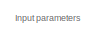
[diagram: root canvas - part 1/8, top left region]
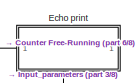
[diagram: root canvas - part 2/8, top center region]
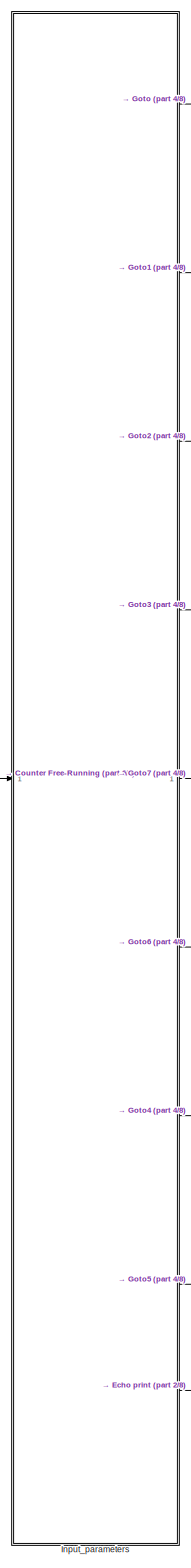
[diagram: root canvas - part 3/8, top left region]
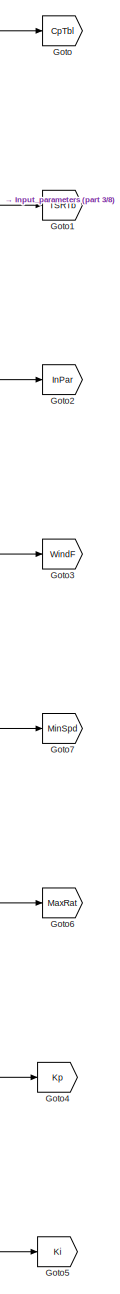
[diagram: root canvas - part 4/8, top center region]
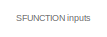
[diagram: root canvas - part 5/8, bottom left region]
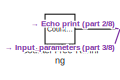
[diagram: root canvas - part 6/8, bottom left region]
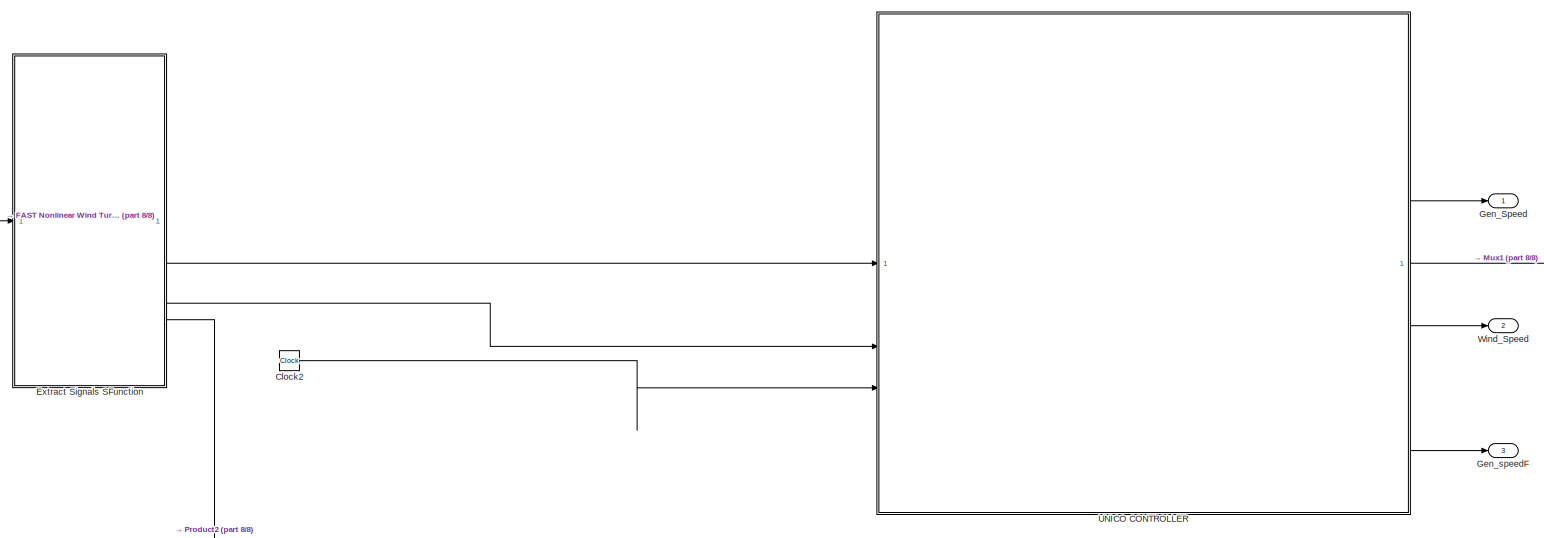
[diagram: root canvas - part 7/8, bottom left region]
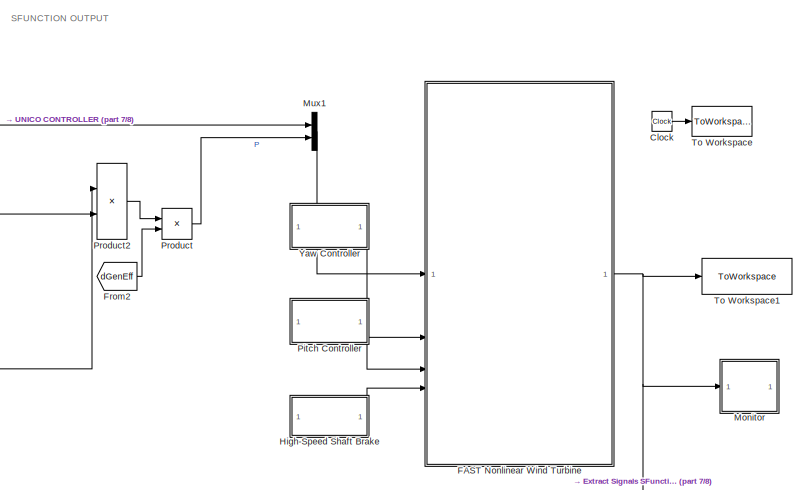
[diagram: root canvas - part 8/8, bottom right region]
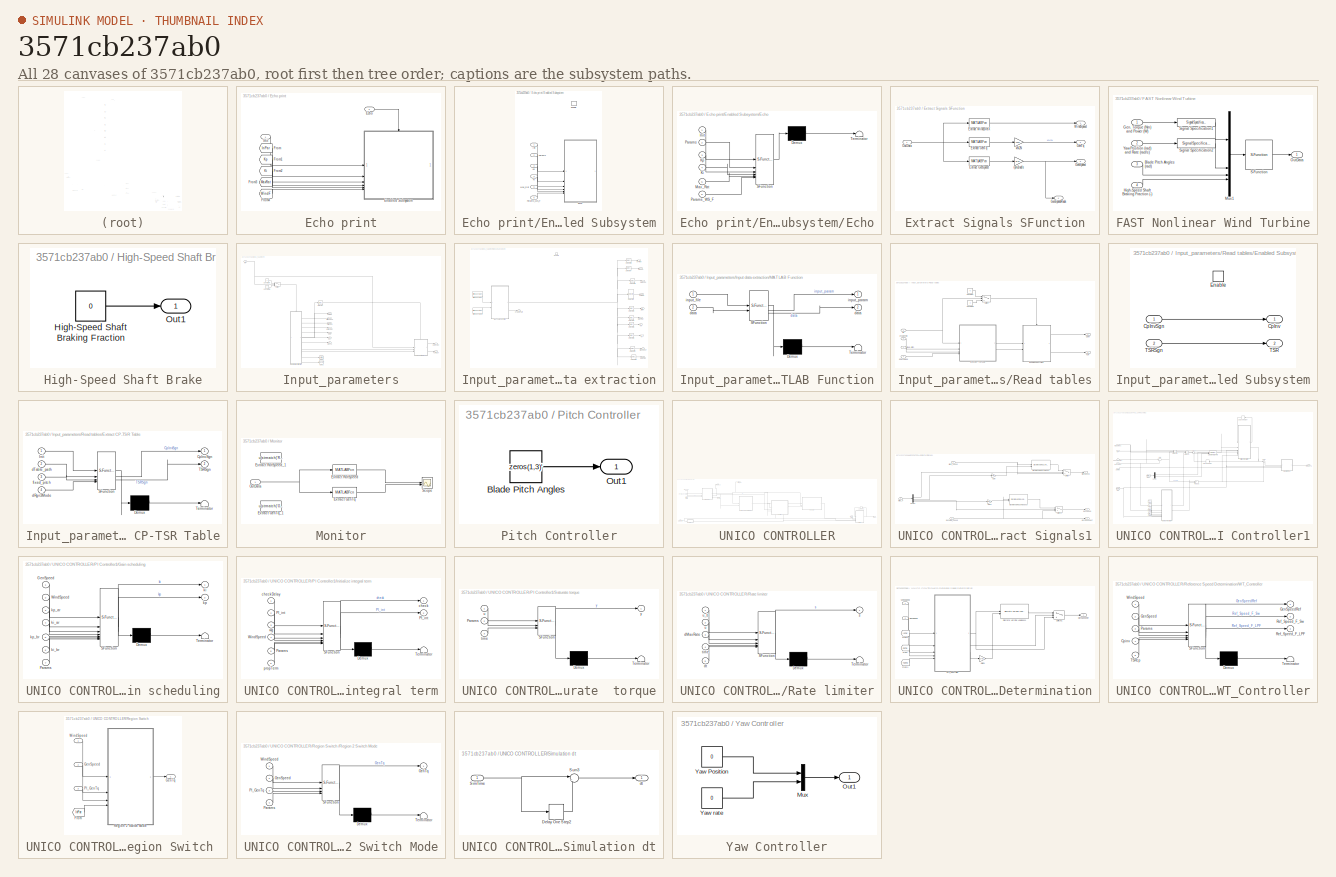
[diagram: thumbnail index - all 28 canvases of the model, root first then tree order]
MODEL slx_3571cb237ab0
KIND model
CONFIG AbsTol = auto
CONFIG EnableMultiTasking = off
CONFIG FixedStep = auto
CONFIG MaxStep = auto
CONFIG MinStep = auto
CONFIG RelTol = 1e-3
CONFIG SampleTimeConstraint = Unconstrained
CONFIG SolverName = FixedStepAuto
CONFIG StartTime = 0.0
CONFIG StopTime = 100
BLOCK [Clock] Clock
BLOCK [Clock] Clock2
BLOCK [Reference] Counter Free-Running  REF=simulink/Sources/Counter
Free-Running
  SourceBlock = simulink/Sources/Counter\nFree-Running
  SourceType = Counter Free-Running
BLOCK [SubSystem] Echo print
  PortSchema = {"entries":[{"content":{"sides":[{"content":{"connectorIds":["In1"]},"type":"ConnectorPlacement.EquallySpacedRectSide","uuid":"a7404841-4279-4901-8e4b-4d9f651fd70d"},{"content":{"side":"RIGHT"},"type":"ConnectorPlacement.EquallySpacedRectSide","uuid":"c083252d-994d-448b-85dd-b05fa098362a"},{"content":{"connectorIds":["In2"],"side":"TOP"},"type":"ConnectorPlacement.EquallySpacedRectSide","uuid":"21...<+221ch>
BLOCK [Inport] Echo print/Echo
  Port = 2
BLOCK [SubSystem] Echo print/Enabled Subsystem
  LibrarySourceBlock = hdlsllib/Ports &\nSubsystems/Enabled\nSubsystem
  TreatAsAtomicUnit = on
BLOCK [SubSystem] Echo print/Enabled Subsystem/Echo
  ErrorFcn = Stateflow.Translate.translate
  LibrarySourceBlock = simulink/User-Defined\nFunctions/MATLAB Function
  PermitHierarchicalResolution = ExplicitOnly
  SFBlockType = MATLAB Function
  TreatAsAtomicUnit = on
BLOCK [Demux] Echo print/Enabled Subsystem/Echo/ Demux 
  Outputs = 1
BLOCK [S-Function] Echo print/Enabled Subsystem/Echo/ SFunction 
  EnableBusSupport = on
  FunctionName = sf_sfun
  PortCounts = [6 1]
  SFcnIsStateOwnerBlock = off
  SFunctionDeploymentMode = off
  Tag = Stateflow S-Function 8
BLOCK [Terminator] Echo print/Enabled Subsystem/Echo/ Terminator 
BLOCK [Inport] Echo print/Enabled Subsystem/Echo/Init
BLOCK [Inport] Echo print/Enabled Subsystem/Echo/Ki
  Port = 4
BLOCK [Inport] Echo print/Enabled Subsystem/Echo/Kp
  Port = 3
BLOCK [Inport] Echo print/Enabled Subsystem/Echo/Max_Rat
  Port = 5
BLOCK [Inport] Echo print/Enabled Subsystem/Echo/Params
  Port = 2
BLOCK [Inport] Echo print/Enabled Subsystem/Echo/Params_WS_F
  Port = 6
BLOCK [EnablePort] Echo print/Enabled Subsystem/Enable
BLOCK [Inport] Echo print/Enabled Subsystem/Init
BLOCK [Inport] Echo print/Enabled Subsystem/Ki
  Port = 4
BLOCK [Inport] Echo print/Enabled Subsystem/Kp
  Port = 3
BLOCK [Inport] Echo print/Enabled Subsystem/Max_Rat
  Port = 5
BLOCK [Inport] Echo print/Enabled Subsystem/Params
  Port = 2
BLOCK [Inport] Echo print/Enabled Subsystem/Params_WS_F
  Port = 6
BLOCK [From] Echo print/From
  GotoTag = InPar
  TagVisibility = global
BLOCK [From] Echo print/From1
  GotoTag = Kp
  TagVisibility = global
BLOCK [From] Echo print/From2
  GotoTag = Ki
  TagVisibility = global
BLOCK [From] Echo print/From3
  GotoTag = MaxRat
  TagVisibility = global
BLOCK [From] Echo print/From4
  GotoTag = WindF
  TagVisibility = global
BLOCK [Inport] Echo print/Init
BLOCK [SubSystem] Extract Signals SFunction
  TreatAsAtomicUnit = on
BLOCK [MATLABFcn] Extract Signals SFunction/Extract GenSpeed
  MATLABFcn = u(strmatch('GenSpeed',OutList))
BLOCK [MATLABFcn] Extract Signals SFunction/Extract GenTq
  MATLABFcn = u(strmatch('GenTq',OutList))
BLOCK [MATLABFcn] Extract Signals SFunction/Extract Wind1VelX
  MATLABFcn = u(strmatch('WindHubVelXY',OutList))
BLOCK [Outport] Extract Signals SFunction/GenSpeed
  Port = 3
  VectorParamsAs1DForOutWhenUnconnected = off
BLOCK [Outport] Extract Signals SFunction/GenSpeedRads
  Port = 4
BLOCK [Outport] Extract Signals SFunction/GenTq
  Port = 2
  VectorParamsAs1DForOutWhenUnconnected = off
BLOCK [Inport] Extract Signals SFunction/OutData
BLOCK [Outport] Extract Signals SFunction/WindSpeed
  VectorParamsAs1DForOutWhenUnconnected = off
BLOCK [Gain] Extract Signals SFunction/kN2N
  Gain = 1000
BLOCK [Gain] Extract Signals SFunction/rpm2rad//s
  Gain = pi/30
BLOCK [SubSystem] FAST Nonlinear Wind Turbine
BLOCK [Inport] FAST Nonlinear Wind Turbine/Blade Pitch Angles (rad)
  Port = 3
BLOCK [Inport] FAST Nonlinear Wind Turbine/Gen. Torque (Nm) and Power (W)
BLOCK [Inport] FAST Nonlinear Wind Turbine/High-Speed Shaft Braking Fraction (-)
  Port = 4
BLOCK [Mux] FAST Nonlinear Wind Turbine/Mux1
  DisplayOption = bar
BLOCK [Outport] FAST Nonlinear Wind Turbine/OutData
BLOCK [S-Function] FAST Nonlinear Wind Turbine/S-Function
  EnableBusSupport = off
  FunctionName = FAST_SFunc
  Parameters = FAST_InputFileName, TMax, 0
  SFcnIsStateOwnerBlock = off
  SFunctionDeploymentMode = off
BLOCK [SignalSpecification] FAST Nonlinear Wind Turbine/Signal Specification1
  Dimensions = 2
  OutDataTypeStr = double
  SignalType = real
BLOCK [SignalSpecification] FAST Nonlinear Wind Turbine/Signal Specification2
  Dimensions = 2
  OutDataTypeStr = double
  SignalType = real
BLOCK [Inport] FAST Nonlinear Wind Turbine/Yaw Position (rad) and Rate (rad//s)
  Port = 2
BLOCK [From] From2
  GotoTag = dGenEff
  TagVisibility = global
BLOCK [Outport] Gen_Speed
BLOCK [Outport] Gen_speedF
  Port = 3
BLOCK [Goto] Goto
  GotoTag = CpTbl
  TagVisibility = global
BLOCK [Goto] Goto1
  GotoTag = TSRTb
  TagVisibility = global
BLOCK [Goto] Goto2
  GotoTag = InPar
  TagVisibility = global
BLOCK [Goto] Goto3
  GotoTag = WindF
  TagVisibility = global
BLOCK [Goto] Goto4
  GotoTag = Kp
  TagVisibility = global
BLOCK [Goto] Goto5
  GotoTag = Ki
  TagVisibility = global
BLOCK [Goto] Goto6
  GotoTag = MaxRat
  TagVisibility = global
BLOCK [Goto] Goto7
  GotoTag = MinSpd
  TagVisibility = global
BLOCK [SubSystem] High-Speed Shaft Brake
BLOCK [Constant] High-Speed Shaft Brake/High-Speed Shaft Braking Fraction
  Value = 0
BLOCK [Outport] High-Speed Shaft Brake/Out1
BLOCK [SubSystem] Input_parameters
BLOCK [Constant] Input_parameters/Constant
  Value = 0
BLOCK [Constant] Input_parameters/Constant1
  SampleTime = -1
BLOCK [Outport] Input_parameters/CpInvSgn
BLOCK [Goto] Input_parameters/Goto1
  GotoTag = dGenEff
  TagVisibility = global
BLOCK [Goto] Input_parameters/Goto2
  GotoTag = LimInt
  TagVisibility = global
BLOCK [Inport] Input_parameters/Init
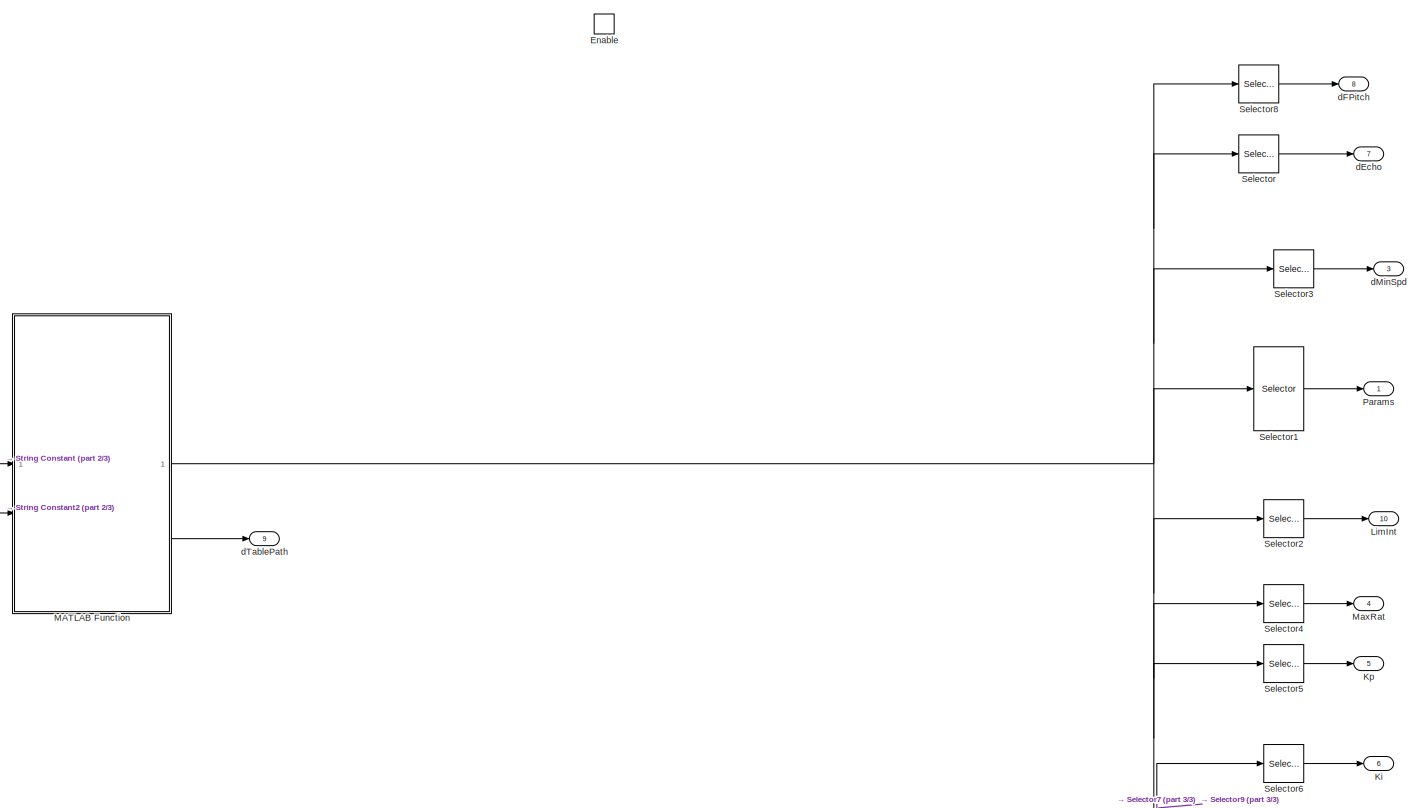
[diagram: Input_parameters/Input data extraction - part 1/3, most of the canvas]
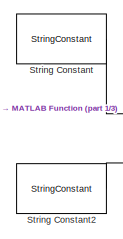
[diagram: Input_parameters/Input data extraction - part 2/3, middle left region]
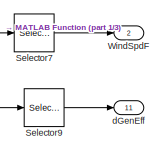
[diagram: Input_parameters/Input data extraction - part 3/3, bottom right region]
BLOCK [SubSystem] Input_parameters/Input data extraction
  LibrarySourceBlock = hdlsllib/Ports &\nSubsystems/Enabled\nSubsystem
  TreatAsAtomicUnit = on
BLOCK [EnablePort] Input_parameters/Input data extraction/Enable
BLOCK [Outport] Input_parameters/Input data extraction/Ki
  Port = 6
BLOCK [Outport] Input_parameters/Input data extraction/Kp
  Port = 5
BLOCK [Outport] Input_parameters/Input data extraction/LimInt
  Port = 10
BLOCK [SubSystem] Input_parameters/Input data extraction/MATLAB Function
  ErrorFcn = Stateflow.Translate.translate
  PermitHierarchicalResolution = ExplicitOnly
  SFBlockType = MATLAB Function
  TreatAsAtomicUnit = on
BLOCK [Demux] Input_parameters/Input data extraction/MATLAB Function/ Demux 
  Outputs = 1
BLOCK [S-Function] Input_parameters/Input data extraction/MATLAB Function/ SFunction 
  EnableBusSupport = on
  FunctionName = sf_sfun
  PortCounts = [2 3]
  SFcnIsStateOwnerBlock = off
  SFunctionDeploymentMode = off
  Tag = Stateflow S-Function 2
BLOCK [Terminator] Input_parameters/Input data extraction/MATLAB Function/ Terminator 
BLOCK [Outport] Input_parameters/Input data extraction/MATLAB Function/data
  Port = 2
BLOCK [Inport] Input_parameters/Input data extraction/MATLAB Function/data 
  Port = 2
BLOCK [Inport] Input_parameters/Input data extraction/MATLAB Function/input_file
BLOCK [Outport] Input_parameters/Input data extraction/MATLAB Function/input_param
  VectorParamsAs1DForOutWhenUnconnected = off
BLOCK [Outport] Input_parameters/Input data extraction/MaxRat
  Port = 4
BLOCK [Outport] Input_parameters/Input data extraction/Params
BLOCK [Selector] Input_parameters/Input data extraction/Selector
  IndexOptions = Index vector (dialog)
  Indices = [1]
  InputPortWidth = 31
  OutputSizes = 1
BLOCK [Selector] Input_parameters/Input data extraction/Selector1
  IndexOptions = Index vector (dialog)
  Indices = [2 3 4 5 6 7 8 9 11 12 13 14 15 16 17 18 19 20 21 28 29 30]
  InputPortWidth = 31
  OutputSizes = 1
BLOCK [Selector] Input_parameters/Input data extraction/Selector2
  IndexOptions = Index vector (dialog)
  Indices = [4 8]
  InputPortWidth = 31
  OutputSizes = 1
BLOCK [Selector] Input_parameters/Input data extraction/Selector3
  IndexOptions = Index vector (dialog)
  Indices = [11]
  InputPortWidth = 31
  OutputSizes = 1
BLOCK [Selector] Input_parameters/Input data extraction/Selector4
  IndexOptions = Index vector (dialog)
  Indices = [10]
  InputPortWidth = 31
  OutputSizes = 1
BLOCK [Selector] Input_parameters/Input data extraction/Selector5
  IndexOptions = Index vector (dialog)
  Indices = [22]
  InputPortWidth = 31
  OutputSizes = 1
BLOCK [Selector] Input_parameters/Input data extraction/Selector6
  IndexOptions = Index vector (dialog)
  Indices = [23]
  InputPortWidth = 31
  OutputSizes = 1
BLOCK [Selector] Input_parameters/Input data extraction/Selector7
  IndexOptions = Index vector (dialog)
  Indices = [24 25 26 27]
  InputPortWidth = 31
  OutputSizes = 1
BLOCK [Selector] Input_parameters/Input data extraction/Selector8
  IndexOptions = Index vector (dialog)
  Indices = [31]
  InputPortWidth = 31
  OutputSizes = 1
BLOCK [Selector] Input_parameters/Input data extraction/Selector9
  IndexOptions = Index vector (dialog)
  Indices = [7]
  InputPortWidth = 31
  OutputSizes = 1
BLOCK [StringConstant] Input_parameters/Input data extraction/String Constant
  String = input_file
BLOCK [StringConstant] Input_parameters/Input data extraction/String Constant2
  String = "None"
BLOCK [Outport] Input_parameters/Input data extraction/WindSpdF
  Port = 2
BLOCK [Outport] Input_parameters/Input data extraction/dEcho
  Port = 7
BLOCK [Outport] Input_parameters/Input data extraction/dFPitch
  Port = 8
BLOCK [Outport] Input_parameters/Input data extraction/dGenEff
  Port = 11
BLOCK [Outport] Input_parameters/Input data extraction/dMinSpd
  Port = 3
BLOCK [Outport] Input_parameters/Input data extraction/dTablePath
  Port = 9
BLOCK [Outport] Input_parameters/Params
  Port = 3
BLOCK [SubSystem] Input_parameters/Read tables
  LibrarySourceBlock = hdlsllib/Ports &\nSubsystems/Enabled\nSubsystem
  PortSchema = {"entries":[{"content":{"sides":[{"content":{"connectorIds":["In1","In2","In3"]},"type":"ConnectorPlacement.EquallySpacedRectSide","uuid":"a7836439-e1fb-45be-ad70-3852da1eaa12"},{"content":{"connectorIds":["Out1","Out2"],"side":"RIGHT"},"type":"ConnectorPlacement.EquallySpacedRectSide","uuid":"ffec095e-4721-408c-aa6b-05f74f8b0376"},{"content":{"connectorIds":["In4"],"side":"TOP"},"type":"Connector...<+264ch>
  TreatAsAtomicUnit = on
BLOCK [Constant] Input_parameters/Read tables/Constant
  Value = 0
BLOCK [Constant] Input_parameters/Read tables/Constant1
  SampleTime = -1
BLOCK [Outport] Input_parameters/Read tables/CpInv
BLOCK [SubSystem] Input_parameters/Read tables/Enabled Subsystem
  LibrarySourceBlock = hdlsllib/Ports &\nSubsystems/Enabled\nSubsystem
  TreatAsAtomicUnit = on
BLOCK [Outport] Input_parameters/Read tables/Enabled Subsystem/CpInv
BLOCK [Inport] Input_parameters/Read tables/Enabled Subsystem/CpInvSgn
BLOCK [EnablePort] Input_parameters/Read tables/Enabled Subsystem/Enable
BLOCK [Outport] Input_parameters/Read tables/Enabled Subsystem/TSR
  Port = 2
BLOCK [Inport] Input_parameters/Read tables/Enabled Subsystem/TSRSgn
  Port = 2
BLOCK [SubSystem] Input_parameters/Read tables/Extract CP-TSR Table
  ErrorFcn = Stateflow.Translate.translate
  LibrarySourceBlock = simulink/User-Defined\nFunctions/MATLAB Function
  PermitHierarchicalResolution = ExplicitOnly
  SFBlockType = MATLAB Function
  TreatAsAtomicUnit = on
BLOCK [Demux] Input_parameters/Read tables/Extract CP-TSR Table/ Demux 
  Outputs = 1
BLOCK [S-Function] Input_parameters/Read tables/Extract CP-TSR Table/ SFunction 
  EnableBusSupport = on
  FunctionName = sf_sfun
  PortCounts = [4 3]
  SFcnIsStateOwnerBlock = off
  SFunctionDeploymentMode = off
  Tag = Stateflow S-Function 12
BLOCK [Terminator] Input_parameters/Read tables/Extract CP-TSR Table/ Terminator 
BLOCK [Outport] Input_parameters/Read tables/Extract CP-TSR Table/CpInvSgn
BLOCK [Inport] Input_parameters/Read tables/Extract CP-TSR Table/Init
BLOCK [Outport] Input_parameters/Read tables/Extract CP-TSR Table/TSRSgn
  Port = 2
BLOCK [Inport] Input_parameters/Read tables/Extract CP-TSR Table/dRgn3Mode
  Port = 4
BLOCK [Inport] Input_parameters/Read tables/Extract CP-TSR Table/dTable_path
  Port = 2
BLOCK [Inport] Input_parameters/Read tables/Extract CP-TSR Table/fixed_pitch
  Port = 3
BLOCK [Inport] Input_parameters/Read tables/Init
BLOCK [Switch] Input_parameters/Read tables/Switch
  Criteria = u2 ~= 0
  InputSameDT = off
  SaturateOnIntegerOverflow = off
  Threshold = 1
BLOCK [Outport] Input_parameters/Read tables/TSR
  Port = 2
BLOCK [Inport] Input_parameters/Read tables/dRgn3Mode
  Port = 4
BLOCK [Inport] Input_parameters/Read tables/dTablePath
  Port = 3
BLOCK [Inport] Input_parameters/Read tables/fixed-pitch
  Port = 2
BLOCK [Selector] Input_parameters/Selector
  IndexOptions = Index vector (dialog)
  Indices = [16]
  InputPortWidth = 22
  OutputSizes = 1
BLOCK [Switch] Input_parameters/Switch
  Criteria = u2 ~= 0
  InputSameDT = off
  SaturateOnIntegerOverflow = off
BLOCK [Outport] Input_parameters/TSRSgn
  Port = 2
BLOCK [Outport] Input_parameters/WindSpdF
  Port = 4
BLOCK [Outport] Input_parameters/dEcho
  Port = 9
BLOCK [Outport] Input_parameters/dKi
  Port = 8
BLOCK [Outport] Input_parameters/dKp
  Port = 7
BLOCK [Outport] Input_parameters/dMaxRat
  Port = 6
BLOCK [Outport] Input_parameters/dMinSpd
  Port = 5
BLOCK [SubSystem] Monitor
  TreatAsAtomicUnit = on
BLOCK [MATLABFcn] Monitor/Extract GenTq
  MATLABFcn = u(strmatch('GenTq',OutList))
BLOCK [Fcn] Monitor/Extract GenTq_1
  Commented = on
  Expr = u(strmatch('GenTq',OutList))
BLOCK [MATLABFcn] Monitor/Extract RotSpeed
  MATLABFcn = u(strmatch('RotSpeed',OutList))
BLOCK [Fcn] Monitor/Extract RotSpeed_1
  Commented = on
  Expr = u(strmatch('RotSpeed',OutList))
BLOCK [Inport] Monitor/OutData
BLOCK [Scope] Monitor/Scope
  Floating = off
  NumInputPorts = 2
  ScopeSpecificationString = Simulink.scopes.TimeScopeBlockCfg('CurrentConfiguration', extmgr.ConfigurationSet(extmgr.Configuration('Core','General UI',true),extmgr.Configuration('Core','Source UI',true),extmgr.Configuration('Sources','WiredSimulink',true,'DataLoggingVariableName','ScopeData1'),extmgr.Configuration('Visuals','Time Domain',true,'SerializedDisplays',{struct('MinYLimReal','1.63079','MaxYLimReal','8.12415','YLabe...<+2832ch>
BLOCK [Mux] Mux1
  DisplayOption = bar
  Inputs = 2
BLOCK [SubSystem] Pitch Controller
BLOCK [Constant] Pitch Controller/Blade Pitch Angles
  Value = zeros(1,3)'
BLOCK [Outport] Pitch Controller/Out1
BLOCK [Product] Product
BLOCK [Product] Product2
BLOCK [ToWorkspace] To Workspace
  MaxDataPoints = inf
  SampleTime = -1
  VariableName = Time
BLOCK [ToWorkspace] To Workspace1
  MaxDataPoints = inf
  SampleTime = -1
  SaveFormat = Timeseries
  VariableName = FAST_Out
BLOCK [SubSystem] UNICO CONTROLLER
BLOCK [Delay] UNICO CONTROLLER/Delay One Step3
  DelayLength = 1
  InputPortMap = u0
BLOCK [SubSystem] UNICO CONTROLLER/Extract Signals1
  TreatAsAtomicUnit = on
BLOCK [Demux] UNICO CONTROLLER/Extract Signals1/Demux
BLOCK [Reference] UNICO CONTROLLER/Extract Signals1/Discrete Varying Lowpass  REF=cstblocks/Linear Parameter Varying/Discrete Varying Lowpass
  SourceBlock = cstblocks/Linear Parameter Varying/Discrete Varying Lowpass
  SourceType = Discrete Varying Lowpass
BLOCK [Reference] UNICO CONTROLLER/Extract Signals1/Discrete Varying Lowpass1  REF=cstblocks/Linear Parameter Varying/Discrete Varying Lowpass
  SourceBlock = cstblocks/Linear Parameter Varying/Discrete Varying Lowpass
  SourceType = Discrete Varying Lowpass
BLOCK [Gain] UNICO CONTROLLER/Extract Signals1/Gain
  Gain = 2*pi
BLOCK [Gain] UNICO CONTROLLER/Extract Signals1/Gain1
  Gain = 2*pi
BLOCK [Outport] UNICO CONTROLLER/Extract Signals1/GenSpeed
  Port = 2
  VectorParamsAs1DForOutWhenUnconnected = off
BLOCK [Outport] UNICO CONTROLLER/Extract Signals1/GenSpeedNoF
  Port = 3
BLOCK [Inport] UNICO CONTROLLER/Extract Signals1/Generator_speed
  Port = 2
BLOCK [Switch] UNICO CONTROLLER/Extract Signals1/Switch
  Criteria = u2 ~= 0
  InputSameDT = off
  SaturateOnIntegerOverflow = off
BLOCK [Switch] UNICO CONTROLLER/Extract Signals1/Switch1
  Criteria = u2 ~= 0
  InputSameDT = off
  SaturateOnIntegerOverflow = off
BLOCK [Outport] UNICO CONTROLLER/Extract Signals1/WindSpeed
  VectorParamsAs1DForOutWhenUnconnected = off
BLOCK [Inport] UNICO CONTROLLER/Extract Signals1/Wind_F
  Port = 3
BLOCK [Inport] UNICO CONTROLLER/Extract Signals1/Wind_speed
BLOCK [From] UNICO CONTROLLER/From
  GotoTag = MaxRat
  TagVisibility = global
BLOCK [From] UNICO CONTROLLER/From1
  GotoTag = WindF
  TagVisibility = global
BLOCK [Outport] UNICO CONTROLLER/GenSpd
  Port = 2
BLOCK [Outport] UNICO CONTROLLER/GenTq
BLOCK [Outport] UNICO CONTROLLER/Gen_speedF
  Port = 4
BLOCK [Inport] UNICO CONTROLLER/Generator_speed
  Port = 2
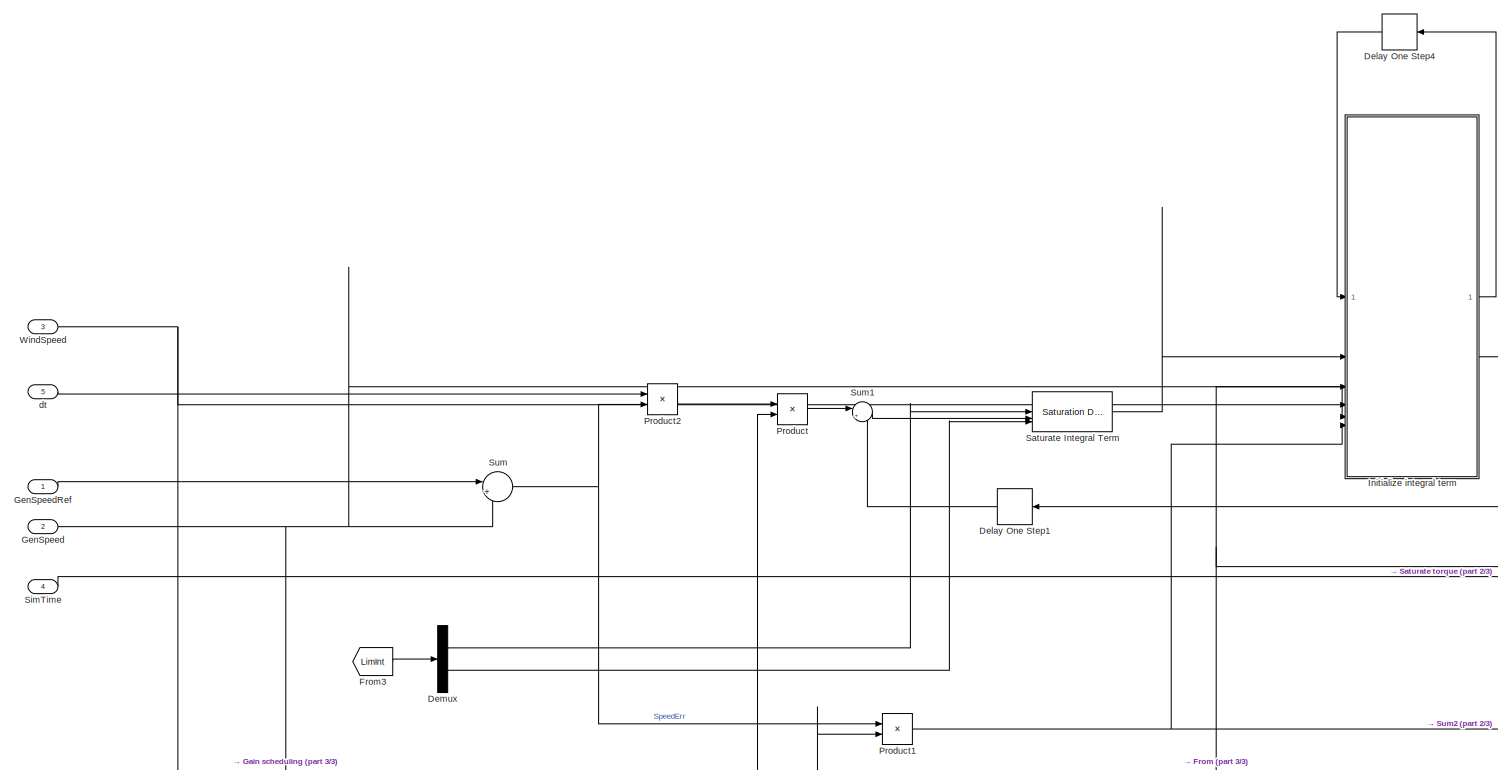
[diagram: UNICO CONTROLLER/PI Controller1 - part 1/3, central region]
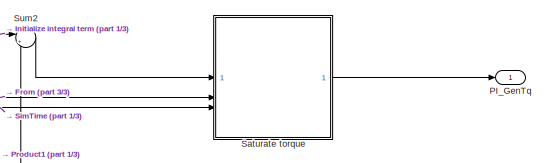
[diagram: UNICO CONTROLLER/PI Controller1 - part 2/3, middle right region]
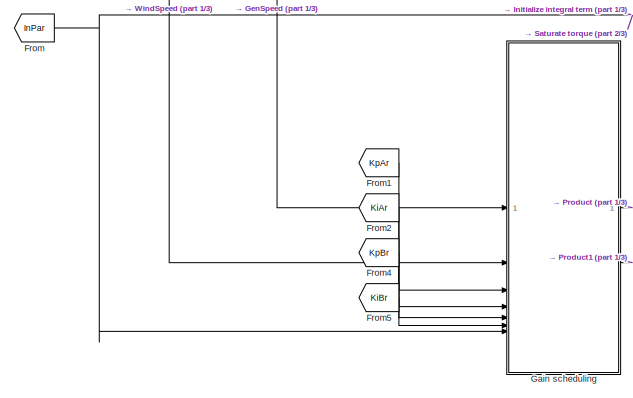
[diagram: UNICO CONTROLLER/PI Controller1 - part 3/3, bottom left region]
BLOCK [SubSystem] UNICO CONTROLLER/PI Controller1
  PortSchema = {"entries":[{"content":{"sides":[{"content":{"connectorIds":["In1","In2","In3"]},"type":"ConnectorPlacement.EquallySpacedRectSide","uuid":"bcfbec15-b5a6-4167-802a-412b097f843a"},{"content":{"connectorIds":["Out1"],"side":"RIGHT"},"type":"ConnectorPlacement.EquallySpacedRectSide","uuid":"a1a0e280-ec2e-4521-b7c2-616f76855769"},{"content":{"side":"TOP"},"type":"ConnectorPlacement.EquallySpacedRectSid...<+389ch>
BLOCK [Delay] UNICO CONTROLLER/PI Controller1/Delay One Step1
  DelayLength = 1
  InputPortMap = u0
BLOCK [Delay] UNICO CONTROLLER/PI Controller1/Delay One Step4
  DelayLength = 1
  InputPortMap = u0
BLOCK [Demux] UNICO CONTROLLER/PI Controller1/Demux
  Outputs = 2
BLOCK [From] UNICO CONTROLLER/PI Controller1/From
  GotoTag = InPar
  TagVisibility = global
BLOCK [From] UNICO CONTROLLER/PI Controller1/From1
  GotoTag = KpAr
  TagVisibility = global
BLOCK [From] UNICO CONTROLLER/PI Controller1/From2
  GotoTag = KiAr
  TagVisibility = global
BLOCK [From] UNICO CONTROLLER/PI Controller1/From3
  GotoTag = LimInt
  TagVisibility = global
BLOCK [From] UNICO CONTROLLER/PI Controller1/From4
  GotoTag = KpBr
  TagVisibility = global
BLOCK [From] UNICO CONTROLLER/PI Controller1/From5
  GotoTag = KiBr
  TagVisibility = global
BLOCK [SubSystem] UNICO CONTROLLER/PI Controller1/Gain scheduling
  ErrorFcn = Stateflow.Translate.translate
  LibrarySourceBlock = simulink/User-Defined\nFunctions/MATLAB Function
  PermitHierarchicalResolution = ExplicitOnly
  SFBlockType = MATLAB Function
  TreatAsAtomicUnit = on
BLOCK [Demux] UNICO CONTROLLER/PI Controller1/Gain scheduling/ Demux 
  Outputs = 1
BLOCK [S-Function] UNICO CONTROLLER/PI Controller1/Gain scheduling/ SFunction 
  EnableBusSupport = on
  FunctionName = sf_sfun
  PortCounts = [7 3]
  SFcnIsStateOwnerBlock = off
  SFunctionDeploymentMode = off
  Tag = Stateflow S-Function 1
BLOCK [Terminator] UNICO CONTROLLER/PI Controller1/Gain scheduling/ Terminator 
BLOCK [Inport] UNICO CONTROLLER/PI Controller1/Gain scheduling/GenSpeed
BLOCK [Inport] UNICO CONTROLLER/PI Controller1/Gain scheduling/Params
  Port = 7
BLOCK [Inport] UNICO CONTROLLER/PI Controller1/Gain scheduling/WindSpeed
  Port = 2
BLOCK [Outport] UNICO CONTROLLER/PI Controller1/Gain scheduling/ki
BLOCK [Inport] UNICO CONTROLLER/PI Controller1/Gain scheduling/ki_ar
  Port = 4
BLOCK [Inport] UNICO CONTROLLER/PI Controller1/Gain scheduling/ki_br
  Port = 6
BLOCK [Outport] UNICO CONTROLLER/PI Controller1/Gain scheduling/kp
  Port = 2
BLOCK [Inport] UNICO CONTROLLER/PI Controller1/Gain scheduling/kp_ar
  Port = 3
BLOCK [Inport] UNICO CONTROLLER/PI Controller1/Gain scheduling/kp_br
  Port = 5
BLOCK [Inport] UNICO CONTROLLER/PI Controller1/GenSpeed
  Port = 2
BLOCK [Inport] UNICO CONTROLLER/PI Controller1/GenSpeedRef
BLOCK [SubSystem] UNICO CONTROLLER/PI Controller1/Initialize integral term
  ErrorFcn = Stateflow.Translate.translate
  LibrarySourceBlock = simulink/User-Defined\nFunctions/MATLAB Function
  PermitHierarchicalResolution = ExplicitOnly
  SFBlockType = MATLAB Function
  TreatAsAtomicUnit = on
BLOCK [Demux] UNICO CONTROLLER/PI Controller1/Initialize integral term/ Demux 
  Outputs = 1
BLOCK [S-Function] UNICO CONTROLLER/PI Controller1/Initialize integral term/ SFunction 
  EnableBusSupport = on
  FunctionName = sf_sfun
  PortCounts = [6 3]
  SFcnIsStateOwnerBlock = off
  SFunctionDeploymentMode = off
  Tag = Stateflow S-Function 3
BLOCK [Terminator] UNICO CONTROLLER/PI Controller1/Initialize integral term/ Terminator 
BLOCK [Outport] UNICO CONTROLLER/PI Controller1/Initialize integral term/PI_int
  Port = 2
BLOCK [Inport] UNICO CONTROLLER/PI Controller1/Initialize integral term/PI_int 
  Port = 2
BLOCK [Inport] UNICO CONTROLLER/PI Controller1/Initialize integral term/Params
  Port = 5
BLOCK [Inport] UNICO CONTROLLER/PI Controller1/Initialize integral term/WindSpeed
  Port = 4
BLOCK [Outport] UNICO CONTROLLER/PI Controller1/Initialize integral term/check
BLOCK [Inport] UNICO CONTROLLER/PI Controller1/Initialize integral term/checkDelay
BLOCK [Inport] UNICO CONTROLLER/PI Controller1/Initialize integral term/propTerm
  Port = 6
BLOCK [Inport] UNICO CONTROLLER/PI Controller1/Initialize integral term/wg
  Port = 3
BLOCK [Outport] UNICO CONTROLLER/PI Controller1/PI_GenTq
BLOCK [Product] UNICO CONTROLLER/PI Controller1/Product
BLOCK [Product] UNICO CONTROLLER/PI Controller1/Product1
BLOCK [Product] UNICO CONTROLLER/PI Controller1/Product2
BLOCK [SubSystem] UNICO CONTROLLER/PI Controller1/Saturate  torque
  ErrorFcn = Stateflow.Translate.translate
  LibrarySourceBlock = simulink/User-Defined\nFunctions/MATLAB Function
  PermitHierarchicalResolution = ExplicitOnly
  SFBlockType = MATLAB Function
  TreatAsAtomicUnit = on
BLOCK [Demux] UNICO CONTROLLER/PI Controller1/Saturate  torque/ Demux 
  Outputs = 1
BLOCK [S-Function] UNICO CONTROLLER/PI Controller1/Saturate  torque/ SFunction 
  EnableBusSupport = on
  FunctionName = sf_sfun
  PortCounts = [3 2]
  SFcnIsStateOwnerBlock = off
  SFunctionDeploymentMode = off
  Tag = Stateflow S-Function 4
BLOCK [Terminator] UNICO CONTROLLER/PI Controller1/Saturate  torque/ Terminator 
BLOCK [Inport] UNICO CONTROLLER/PI Controller1/Saturate  torque/Params
  Port = 2
BLOCK [Inport] UNICO CONTROLLER/PI Controller1/Saturate  torque/time
  Port = 3
BLOCK [Inport] UNICO CONTROLLER/PI Controller1/Saturate  torque/u
BLOCK [Outport] UNICO CONTROLLER/PI Controller1/Saturate  torque/y
BLOCK [Reference] UNICO CONTROLLER/PI Controller1/Saturate Integral Term  REF=simulink/Discontinuities/Saturation
Dynamic
  SourceBlock = simulink/Discontinuities/Saturation\nDynamic
  SourceType = Saturation Dynamic
BLOCK [Inport] UNICO CONTROLLER/PI Controller1/SimTime
  Port = 4
BLOCK [Sum] UNICO CONTROLLER/PI Controller1/Sum
  Inputs = |+-
BLOCK [Sum] UNICO CONTROLLER/PI Controller1/Sum1
  Inputs = |++
BLOCK [Sum] UNICO CONTROLLER/PI Controller1/Sum2
  Inputs = |++
BLOCK [Inport] UNICO CONTROLLER/PI Controller1/WindSpeed
  Port = 3
BLOCK [Inport] UNICO CONTROLLER/PI Controller1/dt
  Port = 5
BLOCK [SubSystem] UNICO CONTROLLER/Rate limiter
  ErrorFcn = Stateflow.Translate.translate
  LibrarySourceBlock = simulink/User-Defined\nFunctions/MATLAB Function
  PermitHierarchicalResolution = ExplicitOnly
  SFBlockType = MATLAB Function
  TreatAsAtomicUnit = on
BLOCK [Demux] UNICO CONTROLLER/Rate limiter/ Demux 
  Outputs = 1
BLOCK [S-Function] UNICO CONTROLLER/Rate limiter/ SFunction 
  EnableBusSupport = on
  FunctionName = sf_sfun
  PortCounts = [5 2]
  SFcnIsStateOwnerBlock = off
  SFunctionDeploymentMode = off
  Tag = Stateflow S-Function 5
BLOCK [Terminator] UNICO CONTROLLER/Rate limiter/ Terminator 
BLOCK [Inport] UNICO CONTROLLER/Rate limiter/dMaxRate
  Port = 3
BLOCK [Inport] UNICO CONTROLLER/Rate limiter/dt
  Port = 5
BLOCK [Outport] UNICO CONTROLLER/Rate limiter/s
BLOCK [Inport] UNICO CONTROLLER/Rate limiter/time
  Port = 4
BLOCK [Inport] UNICO CONTROLLER/Rate limiter/u
  Port = 2
BLOCK [Inport] UNICO CONTROLLER/Rate limiter/u_b
BLOCK [SubSystem] UNICO CONTROLLER/Reference Speed Determination
BLOCK [Reference] UNICO CONTROLLER/Reference Speed Determination/Discrete Varying Lowpass1  REF=cstblocks/Linear Parameter Varying/Discrete Varying Lowpass
  SourceBlock = cstblocks/Linear Parameter Varying/Discrete Varying Lowpass
  SourceType = Discrete Varying Lowpass
BLOCK [From] UNICO CONTROLLER/Reference Speed Determination/From
  GotoTag = CpTbl
  TagVisibility = global
BLOCK [From] UNICO CONTROLLER/Reference Speed Determination/From1
  GotoTag = TSRTb
  TagVisibility = global
BLOCK [From] UNICO CONTROLLER/Reference Speed Determination/From2
  GotoTag = InPar
  TagVisibility = global
BLOCK [Gain] UNICO CONTROLLER/Reference Speed Determination/Gain1
  Gain = 2*pi
BLOCK [Inport] UNICO CONTROLLER/Reference Speed Determination/GenSpeed
  Port = 2
BLOCK [Outport] UNICO CONTROLLER/Reference Speed Determination/GenSpeedRef
BLOCK [Switch] UNICO CONTROLLER/Reference Speed Determination/Switch1
  Criteria = u2 ~= 0
  InputSameDT = off
  SaturateOnIntegerOverflow = off
BLOCK [SubSystem] UNICO CONTROLLER/Reference Speed Determination/WT_Controller
  ErrorFcn = Stateflow.Translate.translate
  LibrarySourceBlock = simulink/User-Defined\nFunctions/MATLAB Function
  PermitHierarchicalResolution = ExplicitOnly
  SFBlockType = MATLAB Function
  TreatAsAtomicUnit = on
BLOCK [Demux] UNICO CONTROLLER/Reference Speed Determination/WT_Controller/ Demux 
  Outputs = 1
BLOCK [S-Function] UNICO CONTROLLER/Reference Speed Determination/WT_Controller/ SFunction 
  EnableBusSupport = on
  FunctionName = sf_sfun
  PortCounts = [5 4]
  SFcnIsStateOwnerBlock = off
  SFunctionDeploymentMode = off
  Tag = Stateflow S-Function 7
BLOCK [Terminator] UNICO CONTROLLER/Reference Speed Determination/WT_Controller/ Terminator 
BLOCK [Inport] UNICO CONTROLLER/Reference Speed Determination/WT_Controller/Cpinv
  Port = 4
BLOCK [Inport] UNICO CONTROLLER/Reference Speed Determination/WT_Controller/GenSpeed
  Port = 2
BLOCK [Outport] UNICO CONTROLLER/Reference Speed Determination/WT_Controller/GenSpeedRef
BLOCK [Inport] UNICO CONTROLLER/Reference Speed Determination/WT_Controller/Params
  Port = 3
BLOCK [Outport] UNICO CONTROLLER/Reference Speed Determination/WT_Controller/Ref_Speed_F_LPF
  Port = 3
BLOCK [Outport] UNICO CONTROLLER/Reference Speed Determination/WT_Controller/Ref_Speed_F_Sw
  Port = 2
BLOCK [Inport] UNICO CONTROLLER/Reference Speed Determination/WT_Controller/TSRcp
  Port = 5
BLOCK [Inport] UNICO CONTROLLER/Reference Speed Determination/WT_Controller/WindSpeed
BLOCK [Inport] UNICO CONTROLLER/Reference Speed Determination/WindSpeed
BLOCK [SubSystem] UNICO CONTROLLER/Region Switch 
BLOCK [From] UNICO CONTROLLER/Region Switch /From
  GotoTag = InPar
  TagVisibility = global
BLOCK [Inport] UNICO CONTROLLER/Region Switch /GenSpeed
  Port = 2
BLOCK [Outport] UNICO CONTROLLER/Region Switch /GenTq
BLOCK [Inport] UNICO CONTROLLER/Region Switch /PI_GenTq
  Port = 3
BLOCK [SubSystem] UNICO CONTROLLER/Region Switch /Region 2 Switch Mode
  ErrorFcn = Stateflow.Translate.translate
  LibrarySourceBlock = simulink/User-Defined\nFunctions/MATLAB Function
  PermitHierarchicalResolution = ExplicitOnly
  SFBlockType = MATLAB Function
  TreatAsAtomicUnit = on
BLOCK [Demux] UNICO CONTROLLER/Region Switch /Region 2 Switch Mode/ Demux 
  Outputs = 1
BLOCK [S-Function] UNICO CONTROLLER/Region Switch /Region 2 Switch Mode/ SFunction 
  EnableBusSupport = on
  FunctionName = sf_sfun
  PortCounts = [4 2]
  SFcnIsStateOwnerBlock = off
  SFunctionDeploymentMode = off
  Tag = Stateflow S-Function 13
BLOCK [Terminator] UNICO CONTROLLER/Region Switch /Region 2 Switch Mode/ Terminator 
BLOCK [Inport] UNICO CONTROLLER/Region Switch /Region 2 Switch Mode/GenSpeed
  Port = 2
BLOCK [Outport] UNICO CONTROLLER/Region Switch /Region 2 Switch Mode/GenTq
BLOCK [Inport] UNICO CONTROLLER/Region Switch /Region 2 Switch Mode/PI_GenTq
  Port = 3
BLOCK [Inport] UNICO CONTROLLER/Region Switch /Region 2 Switch Mode/Params
  Port = 4
BLOCK [Inport] UNICO CONTROLLER/Region Switch /Region 2 Switch Mode/WindSpeed
BLOCK [Inport] UNICO CONTROLLER/Region Switch /WindSpeed
BLOCK [SubSystem] UNICO CONTROLLER/Simulation dt
BLOCK [Delay] UNICO CONTROLLER/Simulation dt/Delay One Step2
  DelayLength = 1
  InputPortMap = u0
  NameLocation = top
BLOCK [Inport] UNICO CONTROLLER/Simulation dt/SimTime
BLOCK [Sum] UNICO CONTROLLER/Simulation dt/Sum3
  Inputs = |+-
BLOCK [Outport] UNICO CONTROLLER/Simulation dt/dt
BLOCK [Inport] UNICO CONTROLLER/Simulation_time
  Port = 3
BLOCK [Outport] UNICO CONTROLLER/Wind_spd
  Port = 3
BLOCK [Inport] UNICO CONTROLLER/Wind_speed
BLOCK [Outport] Wind_Speed
  Port = 2
BLOCK [SubSystem] Yaw Controller
BLOCK [Mux] Yaw Controller/Mux
  DisplayOption = bar
  Inputs = 2
BLOCK [Outport] Yaw Controller/Out1
BLOCK [Constant] Yaw Controller/Yaw Position
  Value = 0
BLOCK [Constant] Yaw Controller/Yaw rate
  Value = 0
ANNOTATION (root): SFUNCTION OUTPUT
ANNOTATION (root): Input parameters
ANNOTATION (root): SFUNCTION inputs
LINE Clock2:1 -> UNICO CONTROLLER:3
LINE Clock:1 -> To Workspace:1
NET Counter Free-Running:1 -> Echo print:1, Input_parameters:1
LINE Echo print/Echo:1 -> Echo print/Enabled Subsystem:enable
LINE Echo print/Enabled Subsystem/Init:1 -> Echo print/Enabled Subsystem/Echo:1
LINE Echo print/Enabled Subsystem/Ki:1 -> Echo print/Enabled Subsystem/Echo:4
LINE Echo print/Enabled Subsystem/Kp:1 -> Echo print/Enabled Subsystem/Echo:3
LINE Echo print/Enabled Subsystem/Max_Rat:1 -> Echo print/Enabled Subsystem/Echo:5
LINE Echo print/Enabled Subsystem/Params:1 -> Echo print/Enabled Subsystem/Echo:2
LINE Echo print/Enabled Subsystem/Params_WS_F:1 -> Echo print/Enabled Subsystem/Echo:6
LINE Echo print/From1:1 -> Echo print/Enabled Subsystem:3
LINE Echo print/From2:1 -> Echo print/Enabled Subsystem:4
LINE Echo print/From3:1 -> Echo print/Enabled Subsystem:5
LINE Echo print/From4:1 -> Echo print/Enabled Subsystem:6
LINE Echo print/From:1 -> Echo print/Enabled Subsystem:2
LINE Echo print/Init:1 -> Echo print/Enabled Subsystem:1
LINE Extract Signals SFunction/Extract GenSpeed:1 -> Extract Signals SFunction/rpm2rad//s:1
LINE Extract Signals SFunction/Extract GenTq:1 -> Extract Signals SFunction/kN2N:1
LINE Extract Signals SFunction/Extract Wind1VelX:1 -> Extract Signals SFunction/WindSpeed:1
NET Extract Signals SFunction/OutData:1 -> Extract Signals SFunction/Extract GenSpeed:1, Extract Signals SFunction/Extract GenTq:1, Extract Signals SFunction/Extract Wind1VelX:1
LINE Extract Signals SFunction/kN2N:1 -> Extract Signals SFunction/GenTq:1
NET Extract Signals SFunction/rpm2rad//s:1 -> Extract Signals SFunction/GenSpeed:1, Extract Signals SFunction/GenSpeedRads:1
LINE Extract Signals SFunction:1 -> UNICO CONTROLLER:1
LINE Extract Signals SFunction:3 -> UNICO CONTROLLER:2
LINE Extract Signals SFunction:4 -> Product2:2
LINE FAST Nonlinear Wind Turbine/Blade Pitch Angles (rad):1 -> FAST Nonlinear Wind Turbine/Mux1:3
LINE FAST Nonlinear Wind Turbine/Gen. Torque (Nm) and Power (W):1 -> FAST Nonlinear Wind Turbine/Signal Specification1:1
LINE FAST Nonlinear Wind Turbine/High-Speed Shaft Braking Fraction (-):1 -> FAST Nonlinear Wind Turbine/Mux1:4
LINE FAST Nonlinear Wind Turbine/Mux1:1 -> FAST Nonlinear Wind Turbine/S-Function:1
LINE FAST Nonlinear Wind Turbine/S-Function:1 -> FAST Nonlinear Wind Turbine/OutData:1
LINE FAST Nonlinear Wind Turbine/Signal Specification1:1 -> FAST Nonlinear Wind Turbine/Mux1:1
LINE FAST Nonlinear Wind Turbine/Signal Specification2:1 -> FAST Nonlinear Wind Turbine/Mux1:2
LINE FAST Nonlinear Wind Turbine/Yaw Position (rad) and Rate (rad//s):1 -> FAST Nonlinear Wind Turbine/Signal Specification2:1
NET FAST Nonlinear Wind Turbine:1 -> Extract Signals SFunction:1, Monitor:1, To Workspace1:1
LINE From2:1 -> Product:2
LINE High-Speed Shaft Brake/High-Speed Shaft Braking Fraction:1 -> High-Speed Shaft Brake/Out1:1
LINE High-Speed Shaft Brake:1 -> FAST Nonlinear Wind Turbine:4
LINE Input_parameters/Constant1:1 -> Input_parameters/Switch:3
LINE Input_parameters/Constant:1 -> Input_parameters/Switch:1
NET Input_parameters/Init:1 -> Input_parameters/Read tables:1, Input_parameters/Switch:2
NET Input_parameters/Input data extraction/MATLAB Function:1 -> Input_parameters/Input data extraction/Selector1:1, Input_parameters/Input data extraction/Selector2:1, Input_parameters/Input data extraction/Selector3:1, Input_parameters/Input data extraction/Selector4:1, Input_parameters/Input data extraction/Selector5:1, Input_parameters/Input data extraction/Selector6:1, Input_parameters/Input data extraction/Selector7:1, Input_parameters/Input data extraction/Selector8:1, Input_parameters/Input data extraction/Selector9:1, Input_parameters/Input data extraction/Selector:1
LINE Input_parameters/Input data extraction/MATLAB Function:2 -> Input_parameters/Input data extraction/dTablePath:1
LINE Input_parameters/Input data extraction/Selector1:1 -> Input_parameters/Input data extraction/Params:1
LINE Input_parameters/Input data extraction/Selector2:1 -> Input_parameters/Input data extraction/LimInt:1
LINE Input_parameters/Input data extraction/Selector3:1 -> Input_parameters/Input data extraction/dMinSpd:1
LINE Input_parameters/Input data extraction/Selector4:1 -> Input_parameters/Input data extraction/MaxRat:1
LINE Input_parameters/Input data extraction/Selector5:1 -> Input_parameters/Input data extraction/Kp:1
LINE Input_parameters/Input data extraction/Selector6:1 -> Input_parameters/Input data extraction/Ki:1
LINE Input_parameters/Input data extraction/Selector7:1 -> Input_parameters/Input data extraction/WindSpdF:1
LINE Input_parameters/Input data extraction/Selector8:1 -> Input_parameters/Input data extraction/dFPitch:1
LINE Input_parameters/Input data extraction/Selector9:1 -> Input_parameters/Input data extraction/dGenEff:1
LINE Input_parameters/Input data extraction/Selector:1 -> Input_parameters/Input data extraction/dEcho:1
LINE Input_parameters/Input data extraction/String Constant2:1 -> Input_parameters/Input data extraction/MATLAB Function:2
LINE Input_parameters/Input data extraction/String Constant:1 -> Input_parameters/Input data extraction/MATLAB Function:1
NET Input_parameters/Input data extraction:1 -> Input_parameters/Params:1, Input_parameters/Selector:1
LINE Input_parameters/Input data extraction:10 -> Input_parameters/Goto2:1
LINE Input_parameters/Input data extraction:11 -> Input_parameters/Goto1:1
LINE Input_parameters/Input data extraction:2 -> Input_parameters/WindSpdF:1
LINE Input_parameters/Input data extraction:3 -> Input_parameters/dMinSpd:1
LINE Input_parameters/Input data extraction:4 -> Input_parameters/dMaxRat:1
LINE Input_parameters/Input data extraction:5 -> Input_parameters/dKp:1
LINE Input_parameters/Input data extraction:6 -> Input_parameters/dKi:1
LINE Input_parameters/Input data extraction:7 -> Input_parameters/dEcho:1
LINE Input_parameters/Input data extraction:8 -> Input_parameters/Read tables:2
LINE Input_parameters/Input data extraction:9 -> Input_parameters/Read tables:3
LINE Input_parameters/Read tables/Constant1:1 -> Input_parameters/Read tables/Switch:3
LINE Input_parameters/Read tables/Constant:1 -> Input_parameters/Read tables/Switch:1
LINE Input_parameters/Read tables/Enabled Subsystem/CpInvSgn:1 -> Input_parameters/Read tables/Enabled Subsystem/CpInv:1
LINE Input_parameters/Read tables/Enabled Subsystem/TSRSgn:1 -> Input_parameters/Read tables/Enabled Subsystem/TSR:1
LINE Input_parameters/Read tables/Enabled Subsystem:1 -> Input_parameters/Read tables/CpInv:1
LINE Input_parameters/Read tables/Enabled Subsystem:2 -> Input_parameters/Read tables/TSR:1
LINE Input_parameters/Read tables/Extract CP-TSR Table:1 -> Input_parameters/Read tables/Enabled Subsystem:1
LINE Input_parameters/Read tables/Extract CP-TSR Table:2 -> Input_parameters/Read tables/Enabled Subsystem:2
NET Input_parameters/Read tables/Init:1 -> Input_parameters/Read tables/Extract CP-TSR Table:1, Input_parameters/Read tables/Switch:2
LINE Input_parameters/Read tables/Switch:1 -> Input_parameters/Read tables/Enabled Subsystem:enable
LINE Input_parameters/Read tables/dRgn3Mode:1 -> Input_parameters/Read tables/Extract CP-TSR Table:4
LINE Input_parameters/Read tables/dTablePath:1 -> Input_parameters/Read tables/Extract CP-TSR Table:2
LINE Input_parameters/Read tables/fixed-pitch:1 -> Input_parameters/Read tables/Extract CP-TSR Table:3
LINE Input_parameters/Read tables:1 -> Input_parameters/CpInvSgn:1
LINE Input_parameters/Read tables:2 -> Input_parameters/TSRSgn:1
LINE Input_parameters/Selector:1 -> Input_parameters/Read tables:4
LINE Input_parameters/Switch:1 -> Input_parameters/Input data extraction:enable
LINE Input_parameters:1 -> Goto:1
LINE Input_parameters:2 -> Goto1:1
LINE Input_parameters:3 -> Goto2:1
LINE Input_parameters:4 -> Goto3:1
LINE Input_parameters:5 -> Goto7:1
LINE Input_parameters:6 -> Goto6:1
LINE Input_parameters:7 -> Goto4:1
LINE Input_parameters:8 -> Goto5:1
LINE Input_parameters:9 -> Echo print:2
LINE Monitor/Extract GenTq:1 -> Monitor/Scope:2
LINE Monitor/Extract RotSpeed:1 -> Monitor/Scope:1
NET Monitor/OutData:1 -> Monitor/Extract GenTq:1, Monitor/Extract RotSpeed:1
LINE Mux1:1 -> FAST Nonlinear Wind Turbine:1
LINE Pitch Controller/Blade Pitch Angles:1 -> Pitch Controller/Out1:1
LINE Pitch Controller:1 -> FAST Nonlinear Wind Turbine:3
LINE Product2:1 -> Product:1
LINE Product:1 -> Mux1:2
LINE UNICO CONTROLLER/Delay One Step3:1 -> UNICO CONTROLLER/Rate limiter:1
LINE UNICO CONTROLLER/Extract Signals1/Demux:1 -> UNICO CONTROLLER/Extract Signals1/Switch:2
LINE UNICO CONTROLLER/Extract Signals1/Demux:2 -> UNICO CONTROLLER/Extract Signals1/Gain:1
LINE UNICO CONTROLLER/Extract Signals1/Demux:3 -> UNICO CONTROLLER/Extract Signals1/Switch1:2
LINE UNICO CONTROLLER/Extract Signals1/Demux:4 -> UNICO CONTROLLER/Extract Signals1/Gain1:1
LINE UNICO CONTROLLER/Extract Signals1/Discrete Varying Lowpass1:1 -> UNICO CONTROLLER/Extract Signals1/Switch1:1
LINE UNICO CONTROLLER/Extract Signals1/Discrete Varying Lowpass:1 -> UNICO CONTROLLER/Extract Signals1/Switch:1
LINE UNICO CONTROLLER/Extract Signals1/Gain1:1 -> UNICO CONTROLLER/Extract Signals1/Discrete Varying Lowpass1:2
LINE UNICO CONTROLLER/Extract Signals1/Gain:1 -> UNICO CONTROLLER/Extract Signals1/Discrete Varying Lowpass:2
NET UNICO CONTROLLER/Extract Signals1/Generator_speed:1 -> UNICO CONTROLLER/Extract Signals1/Discrete Varying Lowpass1:1, UNICO CONTROLLER/Extract Signals1/GenSpeedNoF:1, UNICO CONTROLLER/Extract Signals1/Switch1:3
LINE UNICO CONTROLLER/Extract Signals1/Switch1:1 -> UNICO CONTROLLER/Extract Signals1/GenSpeed:1
LINE UNICO CONTROLLER/Extract Signals1/Switch:1 -> UNICO CONTROLLER/Extract Signals1/WindSpeed:1
LINE UNICO CONTROLLER/Extract Signals1/Wind_F:1 -> UNICO CONTROLLER/Extract Signals1/Demux:1
NET UNICO CONTROLLER/Extract Signals1/Wind_speed:1 -> UNICO CONTROLLER/Extract Signals1/Discrete Varying Lowpass:1, UNICO CONTROLLER/Extract Signals1/Switch:3
NET UNICO CONTROLLER/Extract Signals1:1 -> UNICO CONTROLLER/PI Controller1:3, UNICO CONTROLLER/Reference Speed Determination:1, UNICO CONTROLLER/Region Switch :1, UNICO CONTROLLER/Wind_spd:1
NET UNICO CONTROLLER/Extract Signals1:2 -> UNICO CONTROLLER/Gen_speedF:1, UNICO CONTROLLER/PI Controller1:2, UNICO CONTROLLER/Reference Speed Determination:2, UNICO CONTROLLER/Region Switch :2
LINE UNICO CONTROLLER/Extract Signals1:3 -> UNICO CONTROLLER/GenSpd:1
LINE UNICO CONTROLLER/From1:1 -> UNICO CONTROLLER/Extract Signals1:3
LINE UNICO CONTROLLER/From:1 -> UNICO CONTROLLER/Rate limiter:3
LINE UNICO CONTROLLER/Generator_speed:1 -> UNICO CONTROLLER/Extract Signals1:2
LINE UNICO CONTROLLER/PI Controller1/Delay One Step1:1 -> UNICO CONTROLLER/PI Controller1/Sum1:2
LINE UNICO CONTROLLER/PI Controller1/Delay One Step4:1 -> UNICO CONTROLLER/PI Controller1/Initialize integral term:1
LINE UNICO CONTROLLER/PI Controller1/Demux:1 -> UNICO CONTROLLER/PI Controller1/Saturate Integral Term:1
LINE UNICO CONTROLLER/PI Controller1/Demux:2 -> UNICO CONTROLLER/PI Controller1/Saturate Integral Term:3
LINE UNICO CONTROLLER/PI Controller1/From1:1 -> UNICO CONTROLLER/PI Controller1/Gain scheduling:3
LINE UNICO CONTROLLER/PI Controller1/From2:1 -> UNICO CONTROLLER/PI Controller1/Gain scheduling:4
LINE UNICO CONTROLLER/PI Controller1/From3:1 -> UNICO CONTROLLER/PI Controller1/Demux:1
LINE UNICO CONTROLLER/PI Controller1/From4:1 -> UNICO CONTROLLER/PI Controller1/Gain scheduling:5
LINE UNICO CONTROLLER/PI Controller1/From5:1 -> UNICO CONTROLLER/PI Controller1/Gain scheduling:6
NET UNICO CONTROLLER/PI Controller1/From:1 -> UNICO CONTROLLER/PI Controller1/Gain scheduling:7, UNICO CONTROLLER/PI Controller1/Initialize integral term:5, UNICO CONTROLLER/PI Controller1/Saturate  torque:2
LINE UNICO CONTROLLER/PI Controller1/Gain scheduling:1 -> UNICO CONTROLLER/PI Controller1/Product:2
LINE UNICO CONTROLLER/PI Controller1/Gain scheduling:2 -> UNICO CONTROLLER/PI Controller1/Product1:2
NET UNICO CONTROLLER/PI Controller1/GenSpeed:1 -> UNICO CONTROLLER/PI Controller1/Gain scheduling:1, UNICO CONTROLLER/PI Controller1/Initialize integral term:3, UNICO CONTROLLER/PI Controller1/Sum:2
LINE UNICO CONTROLLER/PI Controller1/GenSpeedRef:1 -> UNICO CONTROLLER/PI Controller1/Sum:1
LINE UNICO CONTROLLER/PI Controller1/Initialize integral term:1 -> UNICO CONTROLLER/PI Controller1/Delay One Step4:1
NET UNICO CONTROLLER/PI Controller1/Initialize integral term:2 -> UNICO CONTROLLER/PI Controller1/Delay One Step1:1, UNICO CONTROLLER/PI Controller1/Sum2:1
NET UNICO CONTROLLER/PI Controller1/Product1:1 -> UNICO CONTROLLER/PI Controller1/Initialize integral term:6, UNICO CONTROLLER/PI Controller1/Sum2:2
LINE UNICO CONTROLLER/PI Controller1/Product2:1 -> UNICO CONTROLLER/PI Controller1/Product:1
LINE UNICO CONTROLLER/PI Controller1/Product:1 -> UNICO CONTROLLER/PI Controller1/Sum1:1
LINE UNICO CONTROLLER/PI Controller1/Saturate  torque:1 -> UNICO CONTROLLER/PI Controller1/PI_GenTq:1
LINE UNICO CONTROLLER/PI Controller1/Saturate Integral Term:1 -> UNICO CONTROLLER/PI Controller1/Initialize integral term:2
LINE UNICO CONTROLLER/PI Controller1/SimTime:1 -> UNICO CONTROLLER/PI Controller1/Saturate  torque:3
LINE UNICO CONTROLLER/PI Controller1/Sum1:1 -> UNICO CONTROLLER/PI Controller1/Saturate Integral Term:2
LINE UNICO CONTROLLER/PI Controller1/Sum2:1 -> UNICO CONTROLLER/PI Controller1/Saturate  torque:1
NET UNICO CONTROLLER/PI Controller1/Sum:1 -> UNICO CONTROLLER/PI Controller1/Product1:1, UNICO CONTROLLER/PI Controller1/Product2:2
NET UNICO CONTROLLER/PI Controller1/WindSpeed:1 -> UNICO CONTROLLER/PI Controller1/Gain scheduling:2, UNICO CONTROLLER/PI Controller1/Initialize integral term:4
LINE UNICO CONTROLLER/PI Controller1/dt:1 -> UNICO CONTROLLER/PI Controller1/Product2:1
LINE UNICO CONTROLLER/PI Controller1:1 -> UNICO CONTROLLER/Region Switch :3
NET UNICO CONTROLLER/Rate limiter:1 -> UNICO CONTROLLER/Delay One Step3:1, UNICO CONTROLLER/GenTq:1
LINE UNICO CONTROLLER/Reference Speed Determination/Discrete Varying Lowpass1:1 -> UNICO CONTROLLER/Reference Speed Determination/Switch1:1
LINE UNICO CONTROLLER/Reference Speed Determination/From1:1 -> UNICO CONTROLLER/Reference Speed Determination/WT_Controller:5
LINE UNICO CONTROLLER/Reference Speed Determination/From2:1 -> UNICO CONTROLLER/Reference Speed Determination/WT_Controller:3
LINE UNICO CONTROLLER/Reference Speed Determination/From:1 -> UNICO CONTROLLER/Reference Speed Determination/WT_Controller:4
LINE UNICO CONTROLLER/Reference Speed Determination/Gain1:1 -> UNICO CONTROLLER/Reference Speed Determination/Discrete Varying Lowpass1:2
LINE UNICO CONTROLLER/Reference Speed Determination/GenSpeed:1 -> UNICO CONTROLLER/Reference Speed Determination/WT_Controller:2
LINE UNICO CONTROLLER/Reference Speed Determination/Switch1:1 -> UNICO CONTROLLER/Reference Speed Determination/GenSpeedRef:1
NET UNICO CONTROLLER/Reference Speed Determination/WT_Controller:1 -> UNICO CONTROLLER/Reference Speed Determination/Discrete Varying Lowpass1:1, UNICO CONTROLLER/Reference Speed Determination/Switch1:3
LINE UNICO CONTROLLER/Reference Speed Determination/WT_Controller:2 -> UNICO CONTROLLER/Reference Speed Determination/Switch1:2
LINE UNICO CONTROLLER/Reference Speed Determination/WT_Controller:3 -> UNICO CONTROLLER/Reference Speed Determination/Gain1:1
LINE UNICO CONTROLLER/Reference Speed Determination/WindSpeed:1 -> UNICO CONTROLLER/Reference Speed Determination/WT_Controller:1
LINE UNICO CONTROLLER/Reference Speed Determination:1 -> UNICO CONTROLLER/PI Controller1:1
LINE UNICO CONTROLLER/Region Switch /From:1 -> UNICO CONTROLLER/Region Switch /Region 2 Switch Mode:4
LINE UNICO CONTROLLER/Region Switch /GenSpeed:1 -> UNICO CONTROLLER/Region Switch /Region 2 Switch Mode:2
LINE UNICO CONTROLLER/Region Switch /PI_GenTq:1 -> UNICO CONTROLLER/Region Switch /Region 2 Switch Mode:3
LINE UNICO CONTROLLER/Region Switch /Region 2 Switch Mode:1 -> UNICO CONTROLLER/Region Switch /GenTq:1
LINE UNICO CONTROLLER/Region Switch /WindSpeed:1 -> UNICO CONTROLLER/Region Switch /Region 2 Switch Mode:1
LINE UNICO CONTROLLER/Region Switch :1 -> UNICO CONTROLLER/Rate limiter:2
LINE UNICO CONTROLLER/Simulation dt/Delay One Step2:1 -> UNICO CONTROLLER/Simulation dt/Sum3:2
NET UNICO CONTROLLER/Simulation dt/SimTime:1 -> UNICO CONTROLLER/Simulation dt/Delay One Step2:1, UNICO CONTROLLER/Simulation dt/Sum3:1
LINE UNICO CONTROLLER/Simulation dt/Sum3:1 -> UNICO CONTROLLER/Simulation dt/dt:1
NET UNICO CONTROLLER/Simulation dt:1 -> UNICO CONTROLLER/PI Controller1:5, UNICO CONTROLLER/Rate limiter:5
NET UNICO CONTROLLER/Simulation_time:1 -> UNICO CONTROLLER/PI Controller1:4, UNICO CONTROLLER/Rate limiter:4, UNICO CONTROLLER/Simulation dt:1
LINE UNICO CONTROLLER/Wind_speed:1 -> UNICO CONTROLLER/Extract Signals1:1
NET UNICO CONTROLLER:1 -> Mux1:1, Product2:1
LINE UNICO CONTROLLER:2 -> Gen_Speed:1
LINE UNICO CONTROLLER:3 -> Wind_Speed:1
LINE UNICO CONTROLLER:4 -> Gen_speedF:1
LINE Yaw Controller/Mux:1 -> Yaw Controller/Out1:1
LINE Yaw Controller/Yaw Position:1 -> Yaw Controller/Mux:1
LINE Yaw Controller/Yaw rate:1 -> Yaw Controller/Mux:2
LINE Yaw Controller:1 -> FAST Nonlinear Wind Turbine:2
note: NET lines group one-source signal fan-out (src -> all destinations, sorted); 1:1 wires keep LINE
CHART Echo print/Enabled
Subsystem/Echo states=1 transitions=1
  STATE_LABEL 'eML_blk_kernel()'
  STATE_LABEL 'SCRIPT:\nfunction fcn(Init, Params, Kp, Ki, Max_Rat, Params_WS_F)\n\nR               = Params(1);  % Rotor radius [m]\nv_rt            = Params(2);  % Rated wind speed  [m/s]\nRt_Tq           = Params(3);  % Rated torque  [Nm]\nPt              = Params(4);  % Rated Power [-]\nw_rt            = Params(5);  % Rated Geerator Speed  [W]\neta             = Params(6);  % Generator Efficiency [-]\nMin_Tq         ...<+3608ch>'
CHART Input_parameters/Read tables/Extract CP-TSR Table states=1 transitions=1
  STATE_LABEL 'eML_blk_kernel()'
  STATE_LABEL "SCRIPT:\nfunction [ CpInvSgn, TSRSgn] = fcn(Init, dTable_path, fixed_pitch, dRgn3Mode)\n\nif Init == 0 && dRgn3Mode == 0  % if it is the first time we run the simulation and we need to extract the data (Optimum TSR tracking in Region 3)\n    % extract the path from the input file\n    aux = extractBefore(dTable_path,'!');\n    RotPerfFile = strtrim(aux); % remove additional spaces at the end of the stri...<+3608ch>"
CHART UNICO CONTROLLER/Region Switch /Region 2 Switch Mode states=1 transitions=1
  STATE_LABEL 'eML_blk_kernel()'
  STATE_LABEL 'SCRIPT:\nfunction GenTq = Rgn2_Fcn(WindSpeed, GenSpeed, PI_GenTq, Params)\n\n% Load R struct variables\nR       = Params(1);  % Rotor radius           [m]\nv_rt    = Params(2);  % Rated power wind speed [m/s]\nw_rt    = Params(5);  % Rated generator speed  [rad/s]\nw_min   = Params(9);  % Minimum generator speed            [rad/s]\nr2      = Params(10);  % Region 2 control mode  {0: optimum tsr tracking; ...<+1919ch>'
CHART UNICO CONTROLLER/PI Controller1/Gain scheduling states=1 transitions=1
  STATE_LABEL 'eML_blk_kernel()'
  STATE_LABEL 'SCRIPT:\nfunction [ki,kp] = fcn(GenSpeed, WindSpeed, kp_ar, ki_ar,kp_br, ki_br, Params)\n\nR       = Params(1);  % Rotor radius           [m]\nv_rt    = Params(2);  % Rated power wind speed [m/s]\nw_rt    = Params(5);  % Rated generator speed  [rad/s]\nr2      = Params(10);  % Region 2 control mode  {0: optimum tsr tracking; 1: kw^2 torque law}\nSpdSwitch = Params(13); %generator speed for switch between...<+750ch>'
CHART Input_parameters/Input data extraction/MATLAB Function states=1 transitions=1
  STATE_LABEL 'eML_blk_kernel()'
  STATE_LABEL "SCRIPT:\nfunction [input_param,data]    = fcn(input_file, data)\n%#read input data - this function is different when simulink or dll are\n%used\n%% read input data\n\n\n% initialize input_param array\ninput_param = zeros(31,1);\n% initialize table path\ndTablePath = '';\n% open input file\nf_in = fopen(input_file);\ncount_p = 1;\n\nwhile ~feof(f_in)\n\n\n    tline = fgetl(f_in);\n\n    if isempty(tline) % skip empty ...<+1068ch>"
CHART UNICO CONTROLLER/PI Controller1/Initialize integral term states=1 transitions=1
  STATE_LABEL 'eML_blk_kernel()'
  STATE_LABEL 'SCRIPT:\nfunction [check,PI_int] = fcn(checkDelay, PI_int, wg,WindSpeed,Params, propTerm)\n\n% Load R struct variables\n\nR       = Params(1);  % Rotor radius           [m]\nv_rt    = Params(2);  % Rated power wind speed [m/s]\nw_rt    = Params(5);  % Rated generator speed  [rad/s]\nw_min   = Params(9);  % Minimum generator speed            [rad/s]\nr2      = Params(10);  % Region 2 control mode  {0: optim...<+2231ch>'
CHART UNICO CONTROLLER/PI Controller1/Saturate  torque states=1 transitions=1
  STATE_LABEL 'eML_blk_kernel()'
  STATE_LABEL 'SCRIPT:\nfunction y = fcn(u,Params, time)\n\n\nMin_Tq = Params(7);  %minimum torque value  [Nm]\nMax_Tq = Params(8);  % maximum torque value  [Nm]\n\nif time < 20   % at the beginning of the simulation do not apply torque saturation to avoid divergence\n    y = u;\nelse\n\n    if u > Max_Tq  % if torque from controller is larger than maximum saturation value\n        \n\n        y = Max_Tq;  % set the torque va...<+301ch>'
CHART UNICO CONTROLLER/Rate limiter states=1 transitions=1
  STATE_LABEL 'eML_blk_kernel()'
  STATE_LABEL 'SCRIPT:\nfunction s = fcn(u_b,u,dMaxRate, time, dt)\n% rate limiter applied only after 20 seconds to allow for controller\n% initialization\nif time>20\n    rate_lim_pos = dMaxRate; % rate limit for torque is simmetric\n    rate_lim_neg = -dMaxRate;\n    % calculate torque rate\n    rate = (u-u_b)/dt;\n\n    if rate > rate_lim_pos % if the torque rate is larger than the maximum allowed, set the torque using...<+286ch>'
CHART UNICO CONTROLLER/Reference Speed Determination/WT_Controller states=1 transitions=1
  STATE_LABEL 'eML_blk_kernel()'
  STATE_LABEL 'SCRIPT:\nfunction [GenSpeedRef, Ref_Speed_F_Sw,Ref_Speed_F_LPF]  = WT_Controller(WindSpeed, GenSpeed, Params, Cpinv, TSRcp)\n\n% Load struct variables\nR       = Params(1);  % Rotor radius            [m]\nv_rt    = Params(2);  % Rated wind speed   [m/s]\nPt      = Params(4);  % RatedPwr             [W]\nw_rt    = Params(5);  % RatedGenSpeed             [rad/s]\neta     = Params(6);  % Generator Efficiency...<+1562ch>'
CHART  states=0 transitions=0
CHART  states=0 transitions=0
CHART  states=0 transitions=0
CHART  states=0 transitions=0
CHART  states=0 transitions=0
CHART  states=0 transitions=0
CHART  states=0 transitions=0
CHART  states=0 transitions=0
CHART  states=0 transitions=0
